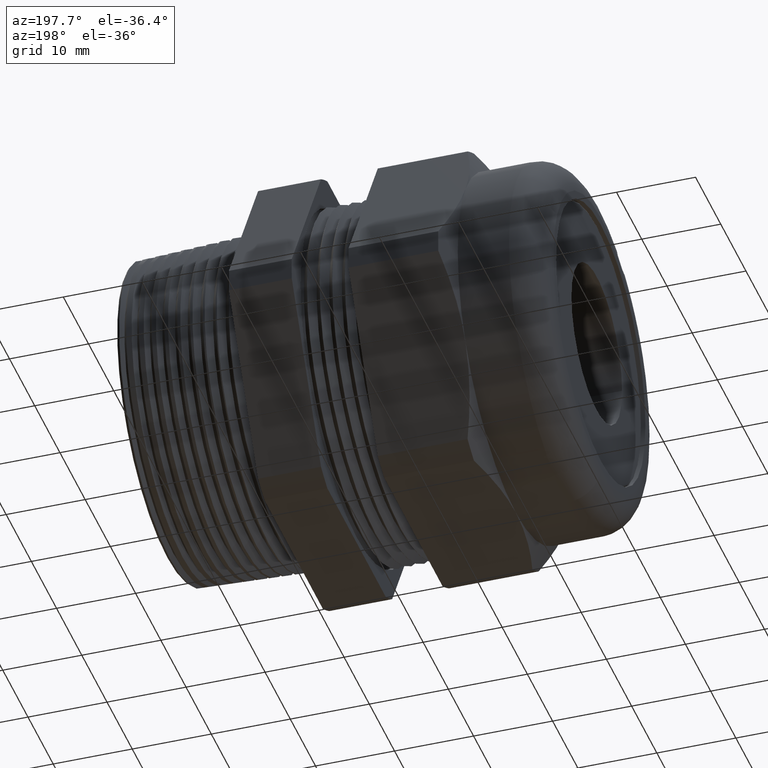
[diagram: clean part render]
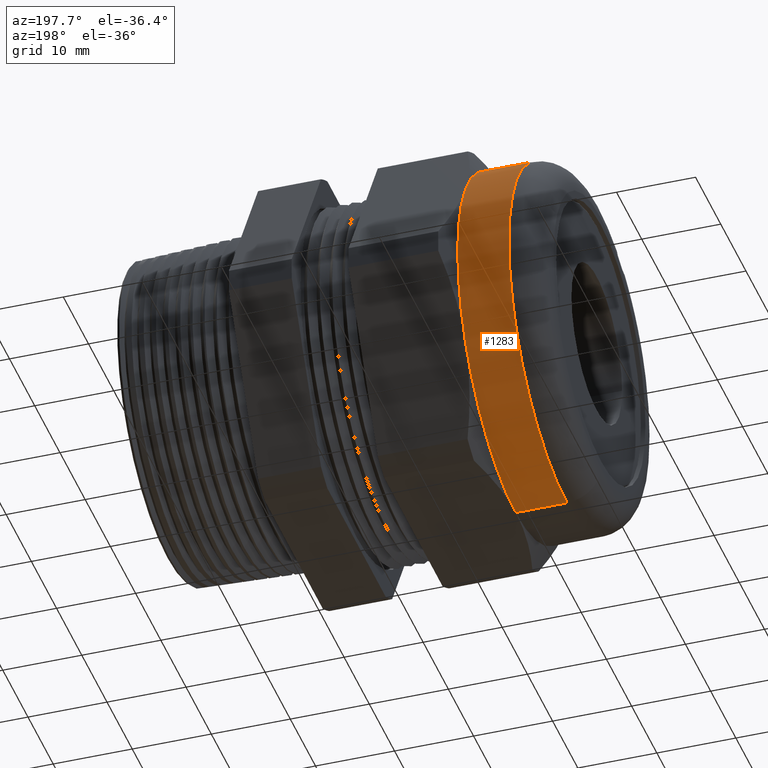
[diagram: same view with one face highlighted and labeled with its STEP entity id]
A machine part, auxiliary view. The second image highlights one B-rep face of the part: STEP entity #1283.
In plain terms, the highlighted cylindrical surface (partial cylindrical patch) has radius 22.987 mm, axis along (-1, 0, 0).
Its self-contained STEP definition (entity closure, byte-faithful):
#1229 = VERTEX_POINT ( 'NONE', #3528 ) ;
#1254 = EDGE_CURVE ( 'NONE', #1255, #1229, #3600, .T. ) ;
#1255 = VERTEX_POINT ( 'NONE', #3595 ) ;
#1280 = ORIENTED_EDGE ( 'NONE', *, *, #1281, .T. ) ;
#1281 = EDGE_CURVE ( 'NONE', #1316, #1321, #3614, .T. ) ;
#1283 = ADVANCED_FACE ( 'NONE', ( #3605 ), #3604, .T. ) ;
#1308 = ORIENTED_EDGE ( 'NONE', *, *, #1309, .T. ) ;
#1309 = EDGE_CURVE ( 'NONE', #1315, #1316, #3663, .T. ) ;
#1310 = ORIENTED_EDGE ( 'NONE', *, *, #1311, .F. ) ;
#1311 = EDGE_CURVE ( 'NONE', #1315, #1229, #3720, .T. ) ;
#1315 = VERTEX_POINT ( 'NONE', #3712 ) ;
#1316 = VERTEX_POINT ( 'NONE', #3711 ) ;
#1321 = VERTEX_POINT ( 'NONE', #3707 ) ;
#1335 = EDGE_LOOP ( 'NONE', ( #1336, #1372, #1379, #1310, #1308, #1280 ) ) ;
#1336 = ORIENTED_EDGE ( 'NONE', *, *, #1337, .T. ) ;
#1337 = EDGE_CURVE ( 'NONE', #1321, #1371, #3748, .T. ) ;
#1371 = VERTEX_POINT ( 'NONE', #3774 ) ;
#1372 = ORIENTED_EDGE ( 'NONE', *, *, #1373, .T. ) ;
#1373 = EDGE_CURVE ( 'NONE', #1371, #1255, #3773, .T. ) ;
#1379 = ORIENTED_EDGE ( 'NONE', *, *, #1254, .T. ) ;
#2338 = DIRECTION ( 'NONE',  ( 0.0000000000000000000, 0.0000000000000000000, 1.000000000000000000 ) ) ;
#3528 = CARTESIAN_POINT ( 'NONE',  ( -1.361399999999999900, 0.0000000000000000000, 0.9049999999999999200 ) ) ;
#3595 = CARTESIAN_POINT ( 'NONE',  ( -1.361399999999999900, 1.108305353228354500E-016, -0.9049999999999999200 ) ) ;
#3596 = DIRECTION ( 'NONE',  ( 0.0000000000000000000, 0.0000000000000000000, -1.000000000000000000 ) ) ;
#3597 = DIRECTION ( 'NONE',  ( 1.000000000000000000, 0.0000000000000000000, 0.0000000000000000000 ) ) ;
#3598 = CARTESIAN_POINT ( 'NONE',  ( -1.361399999999999900, 0.0000000000000000000, 0.0000000000000000000 ) ) ;
#3599 = AXIS2_PLACEMENT_3D ( 'NONE', #3598, #3597, #3596 ) ;
#3600 = CIRCLE ( 'NONE', #3599, 0.9049999999999999200 ) ;
#3601 = DIRECTION ( 'NONE',  ( -1.000000000000000000, 0.0000000000000000000, 0.0000000000000000000 ) ) ;
#3602 = CARTESIAN_POINT ( 'NONE',  ( -0.7238591030180623300, 0.0000000000000000000, 0.0000000000000000000 ) ) ;
#3603 = AXIS2_PLACEMENT_3D ( 'NONE', #3602, #3601, #2338 ) ;
#3604 = CYLINDRICAL_SURFACE ( 'NONE', #3603, 0.9049999999999999200 ) ;
#3605 = FACE_OUTER_BOUND ( 'NONE', #1335, .T. ) ;
#3610 = DIRECTION ( 'NONE',  ( 0.0000000000000000000, 0.0000000000000000000, 1.000000000000000000 ) ) ;
#3611 = DIRECTION ( 'NONE',  ( -1.000000000000000000, 0.0000000000000000000, 0.0000000000000000000 ) ) ;
#3612 = CARTESIAN_POINT ( 'NONE',  ( -1.106250000000000200, 0.0000000000000000000, 0.0000000000000000000 ) ) ;
#3613 = AXIS2_PLACEMENT_3D ( 'NONE', #3612, #3611, #3610 ) ;
#3614 = CIRCLE ( 'NONE', #3613, 0.9049999999999999200 ) ;
#3663 = CIRCLE ( 'NONE', #3724, 0.9049999999999999200 ) ;
#3707 = CARTESIAN_POINT ( 'NONE',  ( -1.106250000000000200, 0.7837529904249169700, -0.4524999999999999000 ) ) ;
#3711 = CARTESIAN_POINT ( 'NONE',  ( -1.106250000000000200, 0.7837529904249169700, 0.4525000000000000700 ) ) ;
#3712 = CARTESIAN_POINT ( 'NONE',  ( -1.106250000000000200, 0.0000000000000000000, 0.9050000000000000300 ) ) ;
#3717 = DIRECTION ( 'NONE',  ( -1.000000000000000000, 0.0000000000000000000, 0.0000000000000000000 ) ) ;
#3718 = VECTOR ( 'NONE', #3717, 39.37007874015748100 ) ;
#3719 = CARTESIAN_POINT ( 'NONE',  ( -0.7238591030180623300, 0.0000000000000000000, 0.9049999999999999200 ) ) ;
#3720 = LINE ( 'NONE', #3719, #3718 ) ;
#3721 = DIRECTION ( 'NONE',  ( 0.0000000000000000000, 0.0000000000000000000, 1.000000000000000000 ) ) ;
#3722 = DIRECTION ( 'NONE',  ( -1.000000000000000000, 0.0000000000000000000, 0.0000000000000000000 ) ) ;
#3723 = CARTESIAN_POINT ( 'NONE',  ( -1.106250000000000200, 0.0000000000000000000, 0.0000000000000000000 ) ) ;
#3724 = AXIS2_PLACEMENT_3D ( 'NONE', #3723, #3722, #3721 ) ;
#3744 = DIRECTION ( 'NONE',  ( 0.0000000000000000000, 0.0000000000000000000, 1.000000000000000000 ) ) ;
#3745 = DIRECTION ( 'NONE',  ( -1.000000000000000000, 0.0000000000000000000, 0.0000000000000000000 ) ) ;
#3746 = CARTESIAN_POINT ( 'NONE',  ( -1.106250000000000200, 0.0000000000000000000, 0.0000000000000000000 ) ) ;
#3747 = AXIS2_PLACEMENT_3D ( 'NONE', #3746, #3745, #3744 ) ;
#3748 = CIRCLE ( 'NONE', #3747, 0.9049999999999999200 ) ;
#3770 = DIRECTION ( 'NONE',  ( -1.000000000000000000, 0.0000000000000000000, 0.0000000000000000000 ) ) ;
#3771 = VECTOR ( 'NONE', #3770, 39.37007874015748100 ) ;
#3772 = CARTESIAN_POINT ( 'NONE',  ( -0.7238591030180623300, 1.108305353228354500E-016, -0.9049999999999999200 ) ) ;
#3773 = LINE ( 'NONE', #3772, #3771 ) ;
#3774 = CARTESIAN_POINT ( 'NONE',  ( -1.106250000000000200, 0.0000000000000000000, -0.9050000000000000300 ) ) ;